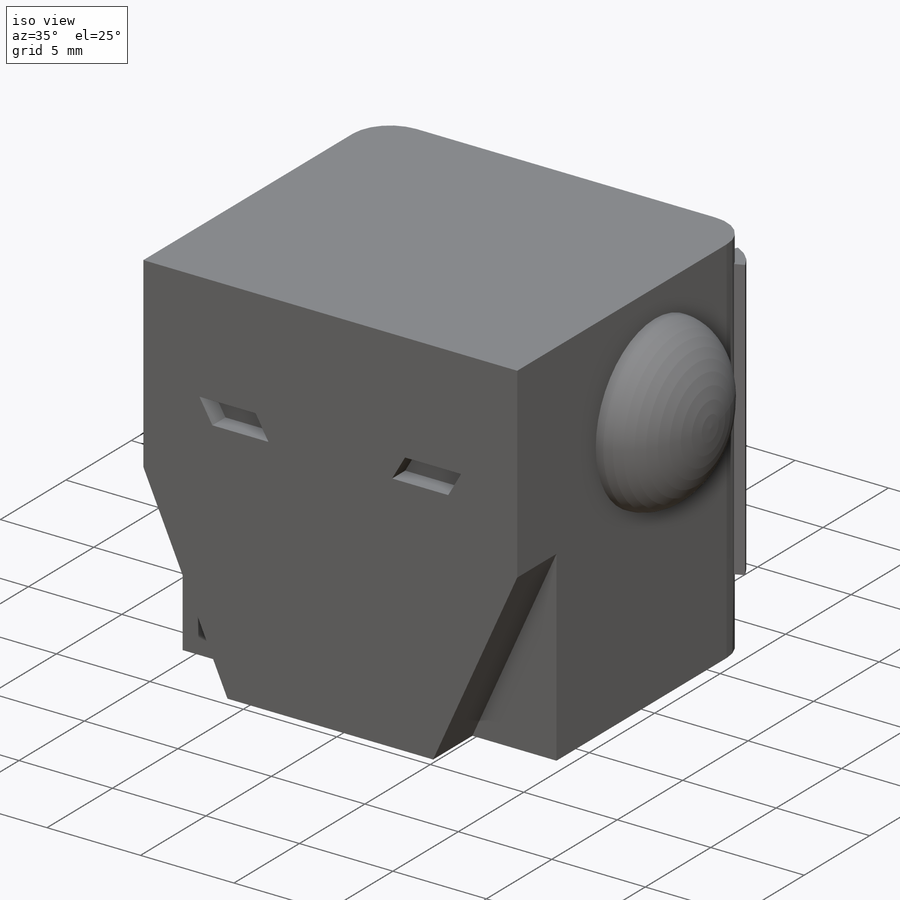
[diagram: iso view]
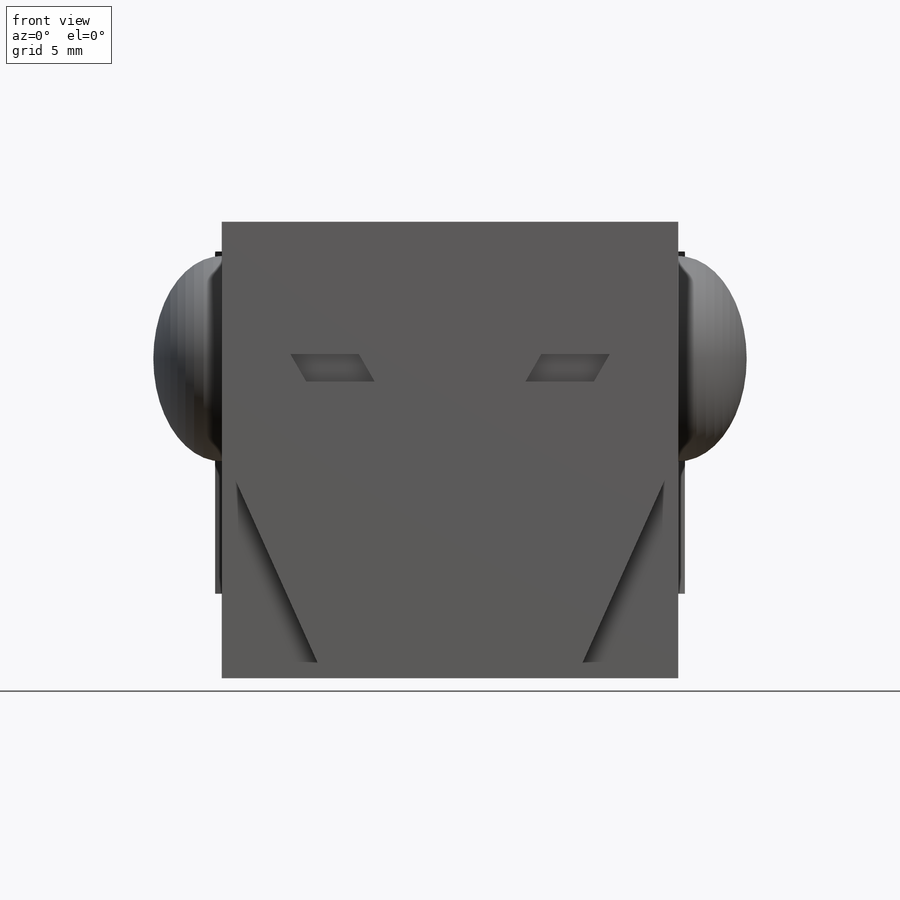
[diagram: front view]
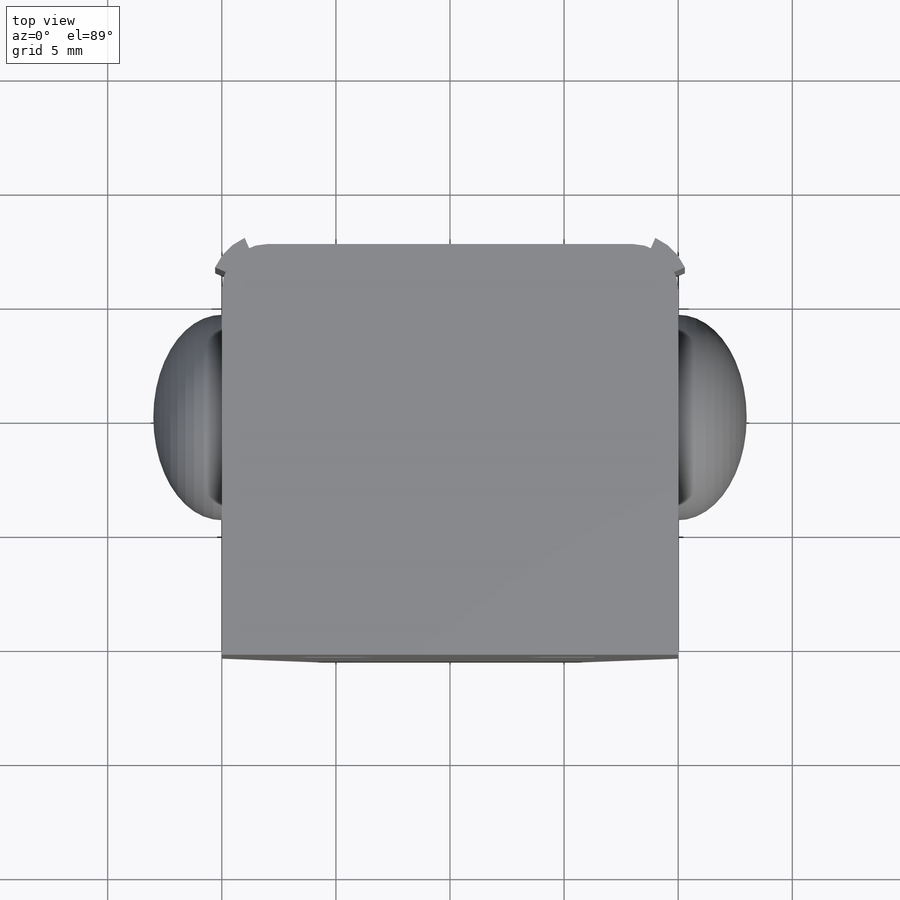
[diagram: top view]
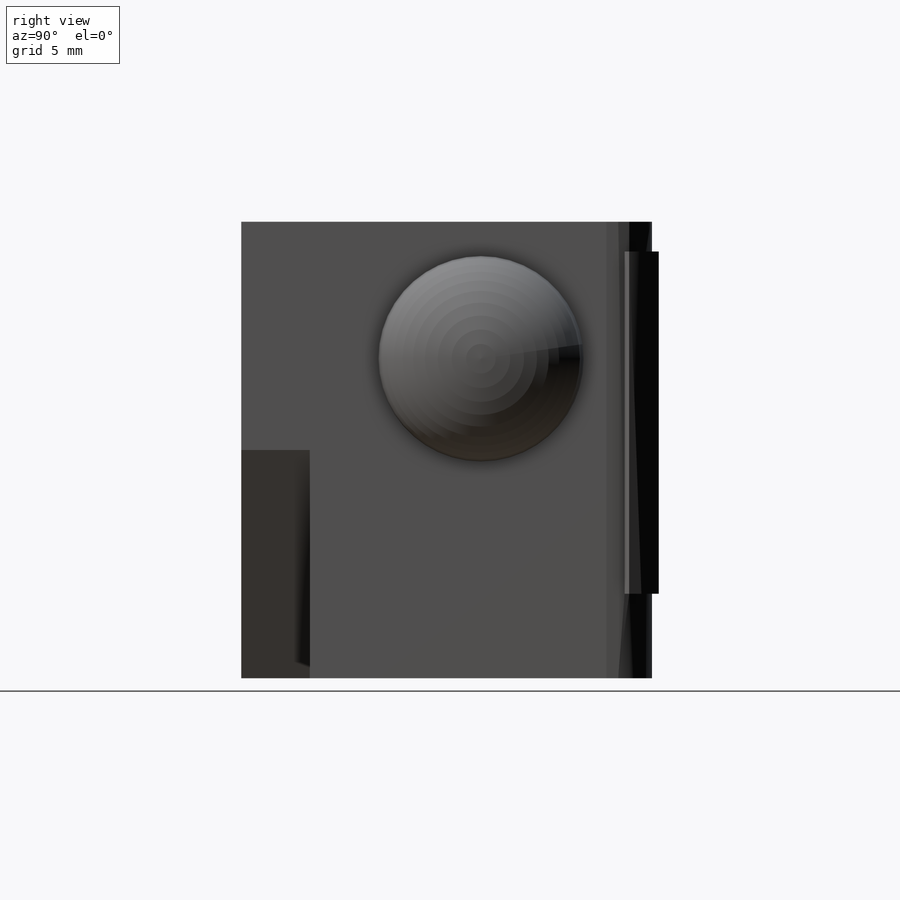
[diagram: right view]
SOLIDWORKS PART (.sldprt)
format: sldprt  version: not decoded by parser v0  size: 321,536 bytes
history: native  units: mm
features: sketch x6, mirror x3, extrude x2, cut_extrude x2, material x1, dome x1, fillet x1, plane x1 (+13 scaffold rows collapsed)
feature tree (30):
  scaffold x13  (default folders/planes/origin — collapsed)
  material  "Material <not specified>"
  sketch  "Sketch1"  dims[D1=15.0mm D2=20.0mm]
  extrude  "Boss-Extrude1"  Depth=20mm
  sketch  "Sketch2"  dims[D1=9.0mm]
  cut_extrude  "Cut-Extrude1"  Depth=7mm
  sketch  "Sketch3"  dims[D1=4.5mm]
  extrude  "Boss-Extrude2"  Depth=3mm
  sketch  "Sketch5"  dims[c1.D1=3.0mm c1.D2=1.2mm c1.D3=13.0mm c1.D4=1.2mm c2.D4=60.0deg c2.D5=3.0mm]
  cut_extrude  "Cut-Extrude4"  Depth=1mm
  mirror  "Mirror2"
  sketch  "Sketch6"  dims[D1=9.0mm D2=6.0mm]
  dome  "Dome1"
  mirror  "Mirror7"
  fillet  "Fillet1"  Radius=2mm
  plane  "Plane1"
  sketch  "Sketch8"  dims[c1.D1=1.3mm c1.D2=15.0mm c1.D3=1.5mm c2.D1=0.5mm]
  mirror  "Mirror9"
decode coverage: 11 of 15 modeling features carry decoded parameters
note: suppression state not decoded; provenance and decode notes live in map.json
